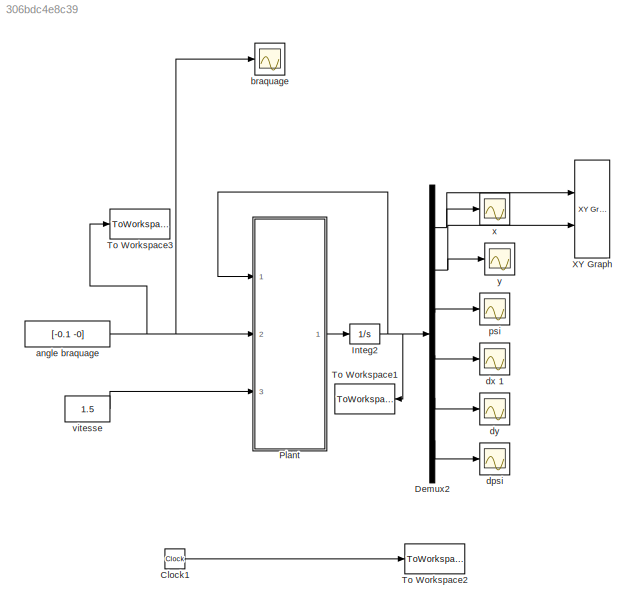
MODEL slx_306bdc4e8c39
KIND model
CONFIG AbsTol = auto
CONFIG EnableMultiTasking = off
CONFIG FixedStep = 0.005
CONFIG MaxStep = auto
CONFIG MinStep = auto
CONFIG RelTol = 1e-2
CONFIG SampleTimeConstraint = Unconstrained
CONFIG Solver = ode5
CONFIG SolverName = ode5
CONFIG StartTime = 0.0
CONFIG StopTime = 30
BLOCK [Clock] Clock1
BLOCK [Demux] Demux2
  DisplayOption = bar
  Outputs = 6
  Ports = [1, 6]
BLOCK [Integrator] Integ2
  InitialCondition = [0 0 pi/2 0 2  0]
  Ports = [1, 1]
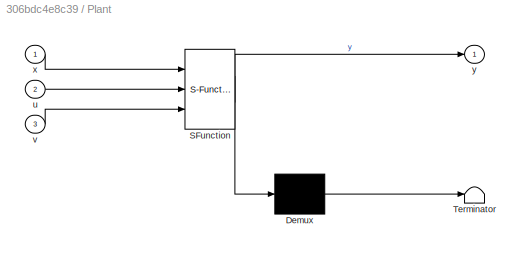
BLOCK [SubSystem] Plant
  ErrorFcn = Stateflow.Translate.translate
  PermitHierarchicalResolution = ExplicitOnly
  Ports = [3, 1]
  RequestExecContextInheritance = off
  SFBlockType = MATLAB Function
  TreatAsAtomicUnit = on
  Variant = off
BLOCK [Demux] Plant/ Demux 
  Outputs = 1
  Ports = [1, 1]
BLOCK [S-Function] Plant/ SFunction 
  EnableBusSupport = on
  FunctionName = sf_sfun
  PortCounts = [3 2]
  Ports = [3, 2]
  SFcnIsStateOwnerBlock = off
  SFunctionDeploymentMode = off
  Tag = Stateflow S-Function NCGPC_BoucleOuverte 2
BLOCK [Terminator] Plant/ Terminator 
BLOCK [Inport] Plant/u
  IconDisplay = Port number
  Port = 2
BLOCK [Inport] Plant/v
  IconDisplay = Port number
  Port = 3
BLOCK [Inport] Plant/x
  IconDisplay = Port number
BLOCK [Outport] Plant/y
  IconDisplay = Port number
BLOCK [ToWorkspace] To Workspace1
  FixptAsFi = on
  MaxDataPoints = inf
  Ports = [1]
  SampleTime = -1
  Save2DSignal = 3-D array (concatenate along third dimension)
  VariableName = pos_cal
BLOCK [ToWorkspace] To Workspace2
  FixptAsFi = on
  MaxDataPoints = inf
  Ports = [1]
  SampleTime = -1
  Save2DSignal = 3-D array (concatenate along third dimension)
  VariableName = temps
BLOCK [ToWorkspace] To Workspace3
  FixptAsFi = on
  MaxDataPoints = inf
  Ports = [1]
  SampleTime = -1
  Save2DSignal = 3-D array (concatenate along third dimension)
  VariableName = beta
BLOCK [Reference] XY Graph  REF=simulink/Sinks/XY Graph
  Ports = [2]
  SourceBlock = simulink/Sinks/XY Graph
  SourceType = XY scope.
BLOCK [Constant] angle braquage
  Value = [-0.1 -0]
BLOCK [Scope] braquage
  NumInputPorts = 1
  Ports = [1]
  ScopeSpecificationString = Simulink.scopes.TimeScopeBlockCfg('CurrentConfiguration', extmgr.ConfigurationSet(extmgr.Configuration('Core','General UI',true),extmgr.Configuration('Core','Source UI',true),extmgr.Configuration('Sources','WiredSimulink',true,'DataLoggingVariableName','ScopeData1'),extmgr.Configuration('Visuals','Time Domain',true,'SerializedDisplays',{struct('MinYLimReal','-1.51408','MaxYLimReal','0.6182','YLabe...<+1442ch>
BLOCK [Scope] dpsi
  NumInputPorts = 1
  Ports = [1]
  ScopeSpecificationString = Simulink.scopes.TimeScopeBlockCfg('CurrentConfiguration', extmgr.ConfigurationSet(extmgr.Configuration('Core','General UI',true),extmgr.Configuration('Core','Source UI',true),extmgr.Configuration('Sources','WiredSimulink',true,'DataLoggingVariableName','ScopeData5'),extmgr.Configuration('Visuals','Time Domain',true,'SerializedDisplays',{struct('MinYLimReal','-0.20399','MaxYLimReal','1.2557','YLabe...<+1391ch>
BLOCK [Scope] dx 1
  NumInputPorts = 1
  Ports = [1]
  ScopeSpecificationString = Simulink.scopes.TimeScopeBlockCfg('CurrentConfiguration', extmgr.ConfigurationSet(extmgr.Configuration('Core','General UI',true),extmgr.Configuration('Core','Source UI',true),extmgr.Configuration('Sources','WiredSimulink',true,'DataLoggingVariableName','ScopeData2'),extmgr.Configuration('Visuals','Time Domain',true,'SerializedDisplays',{struct('MinYLimReal','0.02517','MaxYLimReal','4.45903','YLabe...<+1407ch>
BLOCK [Scope] dy
  NumInputPorts = 1
  Ports = [1]
  ScopeSpecificationString = Simulink.scopes.TimeScopeBlockCfg('CurrentConfiguration', extmgr.ConfigurationSet(extmgr.Configuration('Core','General UI',true),extmgr.Configuration('Core','Source UI',true),extmgr.Configuration('Sources','WiredSimulink',true,'DataLoggingVariableName','ScopeData4'),extmgr.Configuration('Visuals','Time Domain',true,'SerializedDisplays',{struct('MinYLimReal','-13747789116403234000000000000000000000...<+3864ch>
BLOCK [Scope] psi
  NumInputPorts = 1
  Ports = [1]
  ScopeSpecificationString = Simulink.scopes.TimeScopeBlockCfg('CurrentConfiguration', extmgr.ConfigurationSet(extmgr.Configuration('Core','General UI',true),extmgr.Configuration('Core','Source UI',true),extmgr.Configuration('Sources','WiredSimulink',true,'DataLoggingVariableName','ScopeData2'),extmgr.Configuration('Visuals','Time Domain',true,'SerializedDisplays',{struct('MinYLimReal','-3.65813','MaxYLimReal','1.50727','YLab...<+1399ch>
BLOCK [Constant] vitesse
  Value = 1.5
BLOCK [Scope] x 
  NumInputPorts = 1
  Ports = [1]
  ScopeSpecificationString = Simulink.scopes.TimeScopeBlockCfg('CurrentConfiguration', extmgr.ConfigurationSet(extmgr.Configuration('Core','General UI',true),extmgr.Configuration('Core','Source UI',true),extmgr.Configuration('Sources','WiredSimulink',true),extmgr.Configuration('Visuals','Time Domain',true,'SerializedDisplays',{struct('MinYLimReal','-16.01746','MaxYLimReal','144.15713','YLabelReal','','MinYLimMag','0.00000','M...<+1386ch>
BLOCK [Scope] y 
  NumInputPorts = 1
  Ports = [1]
  ScopeSpecificationString = Simulink.scopes.TimeScopeBlockCfg('CurrentConfiguration', extmgr.ConfigurationSet(extmgr.Configuration('Core','General UI',true),extmgr.Configuration('Core','Source UI',true),extmgr.Configuration('Sources','WiredSimulink',true,'DataLoggingVariableName','ScopeData1'),extmgr.Configuration('Visuals','Time Domain',true,'SerializedDisplays',{struct('MinYLimReal','-16.01597','MaxYLimReal','144.14369','Y...<+1432ch>
LINE Clock1:1 -> To Workspace2:1
NET Demux2:1 -> XY Graph:1, x :1
NET Demux2:2 -> XY Graph:2, y :1
LINE Demux2:3 -> psi:1
LINE Demux2:4 -> dx 1:1
LINE Demux2:5 -> dy:1
LINE Demux2:6 -> dpsi:1
NET Integ2:1 -> Demux2:1, Plant:1, To Workspace1:1
LINE Plant:1 -> Integ2:1
NET angle braquage:1 -> Plant:2, To Workspace3:1, braquage:1
LINE vitesse:1 -> Plant:3
note: NET lines group one-source signal fan-out (src -> all destinations, sorted); 1:1 wires keep LINE
CHART Plant states=1 transitions=1
  STATE_LABEL 'eML_blk_kernel()'
  STATE_LABEL "SCRIPT:\nfunction y = plant(x,u,v)\n\n%global param\n\n%rigidité de dérive\nCf=10000;\nCr=10000;\n\n%position du cdg\na=1.2;\nb=1.2;\n\n%masse et momet d'inertie\nmasse=700;\nmoment=400*(1.2^2+0.7^2)/12;\n\n%vitesse\nvit=v;\n\n%%\nbeta_f=u(1);\nbeta_r=u(2);\n\nXpos=x(1);\nYpos=x(2);\npsi=x(3);\n\ndXpos=x(4);\ndYpos=x(5);\ndpsi=x(6);\n\n%% matrice A et B\na11=-2*(Cf+Cr)/(masse*vit);\na12=-2*(a*Cf-b*Cr)/(masse*vit)-vit;\na21=-2*(a*Cf...<+499ch>"
